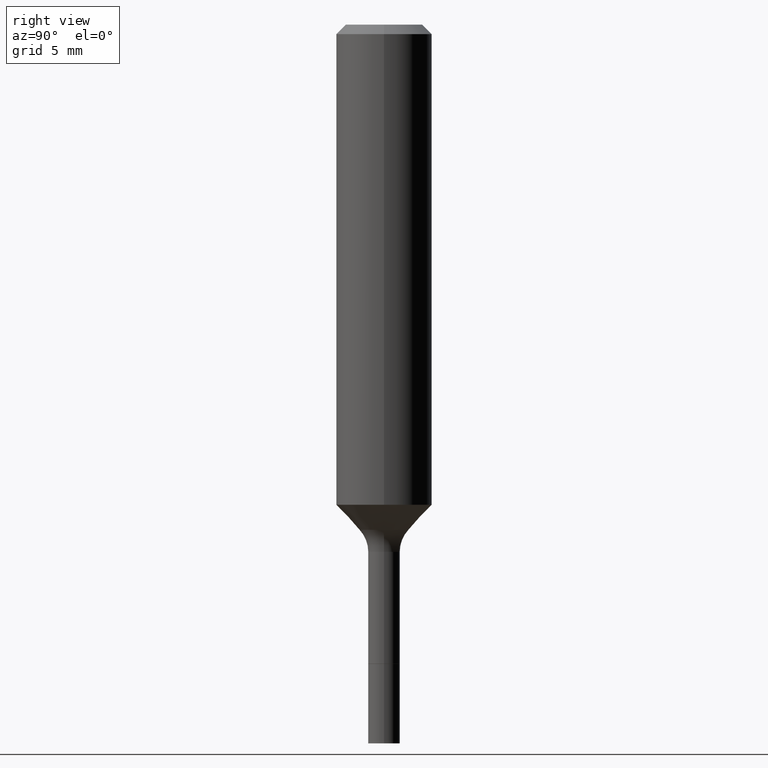
[diagram: clean part render]
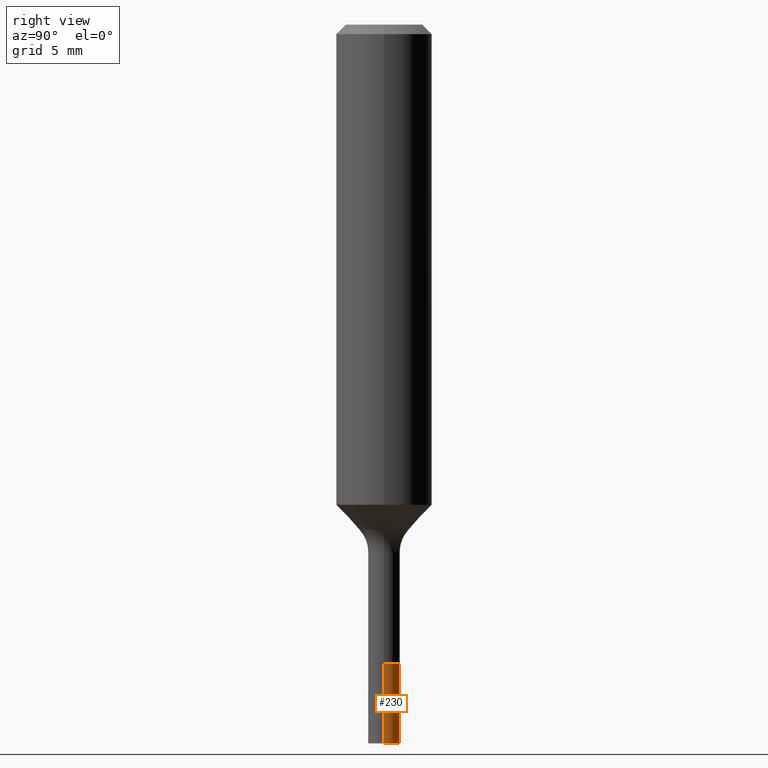
[diagram: same view with one face highlighted and labeled with its STEP entity id]
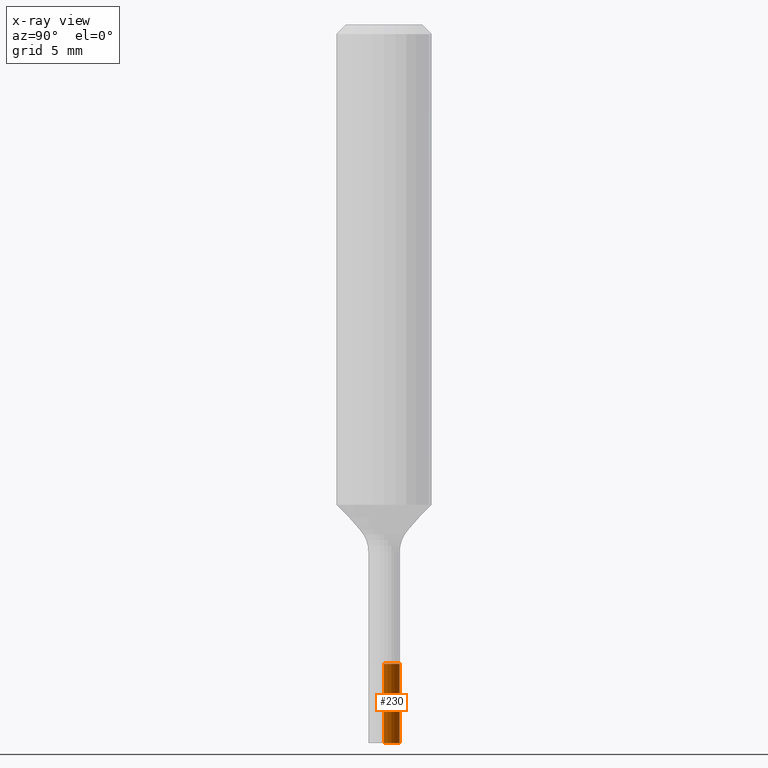
[diagram: x-ray of the same camera — body ghosted, the highlighted face saturated]
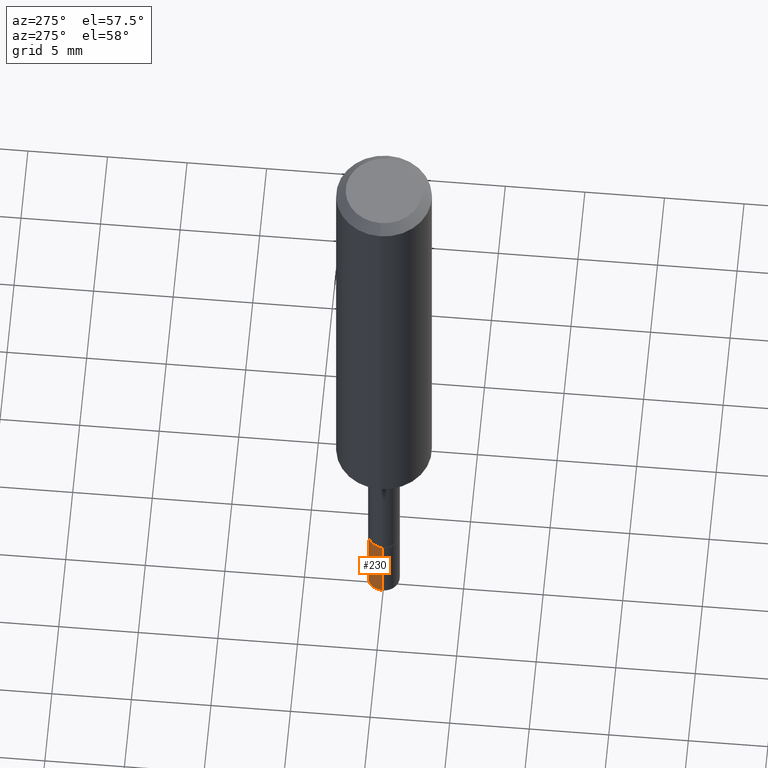
[diagram: same view with one face highlighted and labeled with its STEP entity id]
A machine part, right view. The second image highlights one B-rep face of the part: STEP entity #230.
The next image is the same camera in x-ray: the body ghosted, the highlighted face saturated — about 0% of this face is hidden behind the body in this view.
A second angle (auxiliary view) of the same face is appended — the face is thin or edge-on in the first view.
In plain terms, the highlighted cylindrical surface (edge-blend (fillet) strip) has radius 0.9919 mm, axis along (-0, 0, 1).
Its self-contained STEP definition (entity closure, byte-faithful):
#37 = EDGE_LOOP ( 'NONE', ( #415, #317, #332, #206 ) ) ;
#49 = CARTESIAN_POINT ( 'NONE',  ( -0.03905000000000011240, -5.566225378507452853E-15, -1.771700000000000053 ) ) ;
#74 = VERTEX_POINT ( 'NONE', #49 ) ;
#92 = CIRCLE ( 'NONE', #389, 0.03905000000000011240 ) ;
#98 = CARTESIAN_POINT ( 'NONE',  ( 0.03905000000000011240, -6.458542180592050983E-15, -1.771700000000000053 ) ) ;
#101 = EDGE_CURVE ( 'NONE', #132, #517, #248, .T. ) ;
#105 = DIRECTION ( 'NONE',  ( -2.445468806185136597E-29, 3.491481338843145583E-15, 1.000000000000000000 ) ) ;
#121 = DIRECTION ( 'NONE',  ( -2.445468806185136597E-29, 3.491481338843145583E-15, 1.000000000000000000 ) ) ;
#132 = VERTEX_POINT ( 'NONE', #98 ) ;
#179 = VECTOR ( 'NONE', #349, 39.37007874015748143 ) ;
#187 = DIRECTION ( 'NONE',  ( -2.445468806185136597E-29, 3.491481338843145583E-15, 1.000000000000000000 ) ) ;
#200 = FACE_OUTER_BOUND ( 'NONE', #37, .T. ) ;
#206 = ORIENTED_EDGE ( 'NONE', *, *, #101, .F. ) ;
#224 = CARTESIAN_POINT ( 'NONE',  ( 3.853325197905920174E-29, -5.501527145615144861E-15, -1.575700000000000101 ) ) ;
#225 = VECTOR ( 'NONE', #299, 39.37007874015748143 ) ;
#227 = DIRECTION ( 'NONE',  ( 1.000000000000000000, -6.982962677686269077E-15, 0.000000000000000000 ) ) ;
#230 = ADVANCED_FACE ( 'NONE', ( #200 ), #357, .T. ) ;
#248 = LINE ( 'NONE', #302, #225 ) ;
#249 = EDGE_CURVE ( 'NONE', #74, #325, #300, .T. ) ;
#253 = AXIS2_PLACEMENT_3D ( 'NONE', #224, #187, #227 ) ;
#280 = CARTESIAN_POINT ( 'NONE',  ( 4.332637083918206427E-29, -6.185857488028401081E-15, -1.771700000000000053 ) ) ;
#299 = DIRECTION ( 'NONE',  ( -2.445468806185136877E-29, 3.491481338843145188E-15, 1.000000000000000000 ) ) ;
#300 = LINE ( 'NONE', #463, #179 ) ;
#302 = CARTESIAN_POINT ( 'NONE',  ( 0.03905000000000004995, -5.774211838178793974E-15, -1.575700000000000101 ) ) ;
#304 = DIRECTION ( 'NONE',  ( 1.000000000000000000, -6.982962677686258033E-15, 0.000000000000000000 ) ) ;
#317 = ORIENTED_EDGE ( 'NONE', *, *, #249, .T. ) ;
#325 = VERTEX_POINT ( 'NONE', #432 ) ;
#332 = ORIENTED_EDGE ( 'NONE', *, *, #400, .F. ) ;
#349 = DIRECTION ( 'NONE',  ( -2.445468806185136877E-29, 3.491481338843145188E-15, 1.000000000000000000 ) ) ;
#357 = CYLINDRICAL_SURFACE ( 'NONE', #375, 0.03905000000000004995 ) ;
#375 = AXIS2_PLACEMENT_3D ( 'NONE', #509, #105, #304 ) ;
#389 = AXIS2_PLACEMENT_3D ( 'NONE', #280, #121, #442 ) ;
#400 = EDGE_CURVE ( 'NONE', #517, #325, #477, .T. ) ;
#407 = EDGE_CURVE ( 'NONE', #132, #74, #92, .T. ) ;
#415 = ORIENTED_EDGE ( 'NONE', *, *, #407, .T. ) ;
#432 = CARTESIAN_POINT ( 'NONE',  ( -0.03904999999999998750, -5.566225378507453642E-15, -1.575700000000000101 ) ) ;
#442 = DIRECTION ( 'NONE',  ( 1.000000000000000000, -6.982962677686272233E-15, 0.000000000000000000 ) ) ;
#463 = CARTESIAN_POINT ( 'NONE',  ( -0.03905000000000004995, -5.224060207300825532E-15, -1.575700000000000101 ) ) ;
#477 = CIRCLE ( 'NONE', #253, 0.03904999999999998750 ) ;
#494 = CARTESIAN_POINT ( 'NONE',  ( 0.03904999999999998750, -5.774211838178793974E-15, -1.575700000000000101 ) ) ;
#509 = CARTESIAN_POINT ( 'NONE',  ( 3.853325197905920174E-29, -5.501527145615144861E-15, -1.575700000000000101 ) ) ;
#517 = VERTEX_POINT ( 'NONE', #494 ) ;